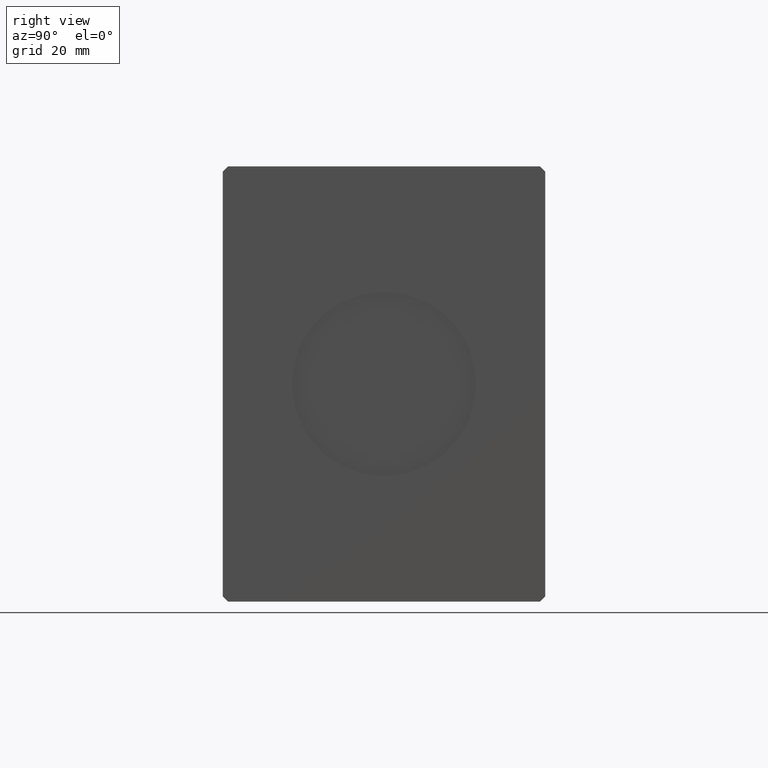
[diagram: clean part render]
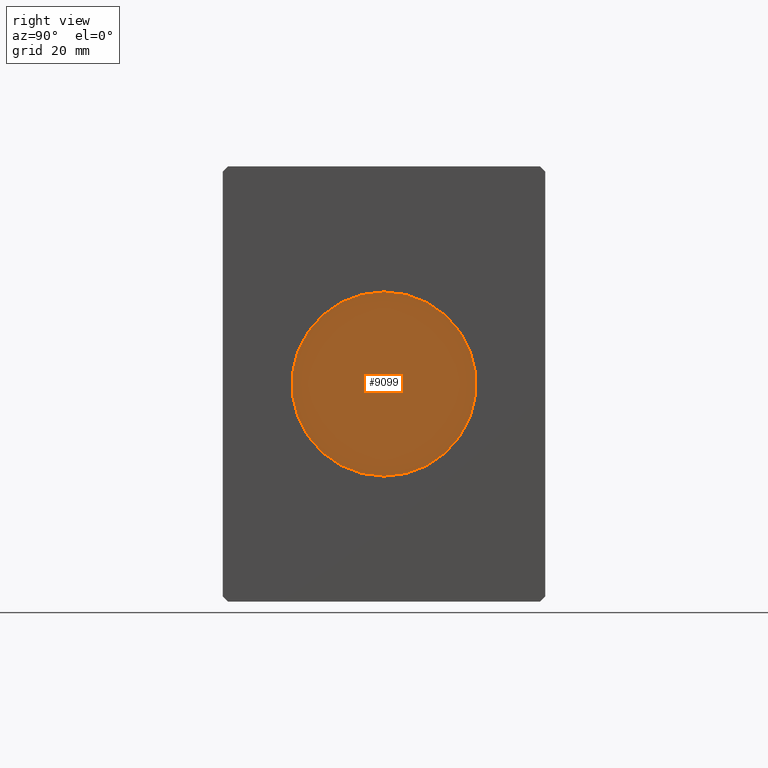
[diagram: same view with one face highlighted and labeled with its STEP entity id]
A machine part, right view. The second image highlights one B-rep face of the part: STEP entity #9099.
In plain terms, the highlighted planar face has unit normal (1, 0, 0).
Its self-contained STEP definition (entity closure, byte-faithful):
#3733 = CARTESIAN_POINT ( 'NONE',  ( 95.79999999999999716, 0.000000000000000000, -18.00000000000000000 ) ) ;
#4258 = CIRCLE ( 'NONE', #27383, 18.00000000000000000 ) ;
#5270 = DIRECTION ( 'NONE',  ( 1.000000000000000000, 0.000000000000000000, 0.000000000000000000 ) ) ;
#5650 = CARTESIAN_POINT ( 'NONE',  ( 95.79999999999999716, 2.204364238465235428E-15, 18.00000000000000000 ) ) ;
#8246 = PLANE ( 'NONE',  #40757 ) ;
#9099 = ADVANCED_FACE ( 'NONE', ( #26651 ), #8246, .T. ) ;
#13555 = VERTEX_POINT ( 'NONE', #5650 ) ;
#14578 = CARTESIAN_POINT ( 'NONE',  ( 95.79999999999999716, 0.000000000000000000, 0.000000000000000000 ) ) ;
#16221 = ORIENTED_EDGE ( 'NONE', *, *, #18844, .T. ) ;
#17165 = AXIS2_PLACEMENT_3D ( 'NONE', #40645, #27984, #25297 ) ;
#18083 = DIRECTION ( 'NONE',  ( 0.000000000000000000, 0.000000000000000000, -1.000000000000000000 ) ) ;
#18844 = EDGE_CURVE ( 'NONE', #13555, #40085, #29696, .T. ) ;
#25297 = DIRECTION ( 'NONE',  ( 0.000000000000000000, 0.000000000000000000, -1.000000000000000000 ) ) ;
#26651 = FACE_OUTER_BOUND ( 'NONE', #27693, .T. ) ;
#26859 = CARTESIAN_POINT ( 'NONE',  ( 95.79999999999999716, 0.000000000000000000, 0.000000000000000000 ) ) ;
#26923 = ORIENTED_EDGE ( 'NONE', *, *, #30667, .T. ) ;
#27383 = AXIS2_PLACEMENT_3D ( 'NONE', #14578, #5270, #18083 ) ;
#27693 = EDGE_LOOP ( 'NONE', ( #26923, #16221 ) ) ;
#27984 = DIRECTION ( 'NONE',  ( 1.000000000000000000, 0.000000000000000000, 0.000000000000000000 ) ) ;
#29696 = CIRCLE ( 'NONE', #17165, 18.00000000000000000 ) ;
#30667 = EDGE_CURVE ( 'NONE', #40085, #13555, #4258, .T. ) ;
#39299 = DIRECTION ( 'NONE',  ( 1.000000000000000000, 0.000000000000000000, 0.000000000000000000 ) ) ;
#39515 = DIRECTION ( 'NONE',  ( 0.000000000000000000, 0.000000000000000000, -1.000000000000000000 ) ) ;
#40085 = VERTEX_POINT ( 'NONE', #3733 ) ;
#40645 = CARTESIAN_POINT ( 'NONE',  ( 95.79999999999999716, 0.000000000000000000, 0.000000000000000000 ) ) ;
#40757 = AXIS2_PLACEMENT_3D ( 'NONE', #26859, #39299, #39515 ) ;